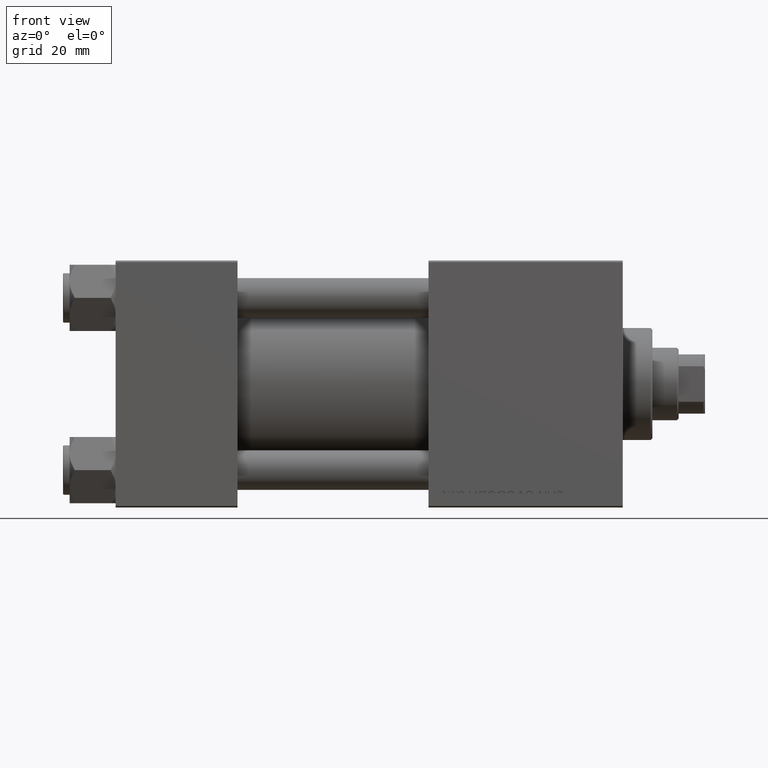
[diagram: clean part render]
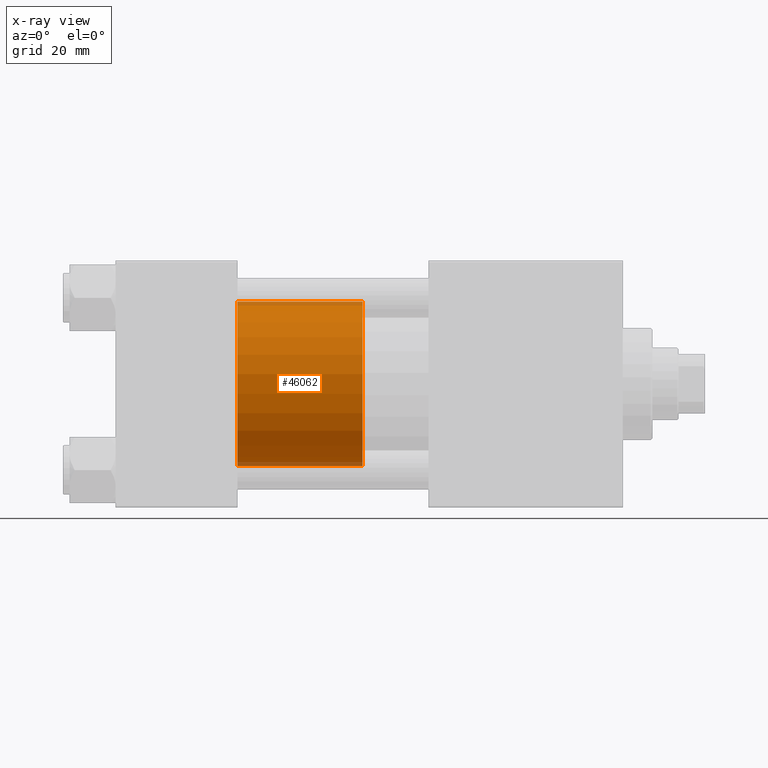
[diagram: x-ray — body ghosted, one internal face saturated and labeled with its STEP entity id]
A machine part, front view, then the same camera in x-ray: the body is ghosted and one INTERNAL B-rep face — a face not visible from any outside direction — is saturated and labeled: STEP entity #46062.
In plain terms, the highlighted cylindrical surface (partial cylindrical patch) has radius 25 mm, axis along (-1, 0, 0).
Its self-contained STEP definition (entity closure, byte-faithful):
#854 = VECTOR ( 'NONE', #43478, 1000.000000000000000 ) ;
#1059 = EDGE_LOOP ( 'NONE', ( #11451, #11830, #21192, #6367 ) ) ;
#1401 = DIRECTION ( 'NONE',  ( 0.000000000000000000, 0.000000000000000000, 1.000000000000000000 ) ) ;
#2827 = CARTESIAN_POINT ( 'NONE',  ( 25.00000000000000000, 3.061616997868383043E-15, 38.00000000000000000 ) ) ;
#4351 = DIRECTION ( 'NONE',  ( 1.000000000000000000, 0.000000000000000000, 0.000000000000000000 ) ) ;
#6367 = ORIENTED_EDGE ( 'NONE', *, *, #11482, .F. ) ;
#7653 = CARTESIAN_POINT ( 'NONE',  ( 0.000000000000000000, 0.000000000000000000, 0.000000000000000000 ) ) ;
#8158 = CARTESIAN_POINT ( 'NONE',  ( -25.00000000000000000, 0.000000000000000000, 0.000000000000000000 ) ) ;
#11332 = VERTEX_POINT ( 'NONE', #2827 ) ;
#11451 = ORIENTED_EDGE ( 'NONE', *, *, #14876, .F. ) ;
#11482 = EDGE_CURVE ( 'NONE', #44862, #12226, #15992, .T. ) ;
#11830 = ORIENTED_EDGE ( 'NONE', *, *, #36559, .T. ) ;
#12226 = VERTEX_POINT ( 'NONE', #8158 ) ;
#12567 = DIRECTION ( 'NONE',  ( 1.000000000000000000, 0.000000000000000000, 0.000000000000000000 ) ) ;
#14876 = EDGE_CURVE ( 'NONE', #11332, #44862, #42220, .T. ) ;
#15241 = CARTESIAN_POINT ( 'NONE',  ( -25.00000000000000000, 0.000000000000000000, 38.00000000000000000 ) ) ;
#15992 = LINE ( 'NONE', #15241, #40529 ) ;
#16848 = VERTEX_POINT ( 'NONE', #48972 ) ;
#18667 = CIRCLE ( 'NONE', #21095, 25.00000000000000000 ) ;
#19528 = CARTESIAN_POINT ( 'NONE',  ( -25.00000000000000000, 0.000000000000000000, 38.00000000000000000 ) ) ;
#20320 = AXIS2_PLACEMENT_3D ( 'NONE', #39001, #1401, #12567 ) ;
#21095 = AXIS2_PLACEMENT_3D ( 'NONE', #7653, #38609, #4351 ) ;
#21192 = ORIENTED_EDGE ( 'NONE', *, *, #36030, .T. ) ;
#21764 = DIRECTION ( 'NONE',  ( -1.000000000000000000, 0.000000000000000000, 0.000000000000000000 ) ) ;
#25344 = CYLINDRICAL_SURFACE ( 'NONE', #28633, 25.00000000000000000 ) ;
#28633 = AXIS2_PLACEMENT_3D ( 'NONE', #37274, #45128, #21764 ) ;
#35616 = LINE ( 'NONE', #46545, #854 ) ;
#36030 = EDGE_CURVE ( 'NONE', #16848, #12226, #18667, .T. ) ;
#36559 = EDGE_CURVE ( 'NONE', #11332, #16848, #35616, .T. ) ;
#37274 = CARTESIAN_POINT ( 'NONE',  ( 0.000000000000000000, 0.000000000000000000, 38.00000000000000000 ) ) ;
#38609 = DIRECTION ( 'NONE',  ( 0.000000000000000000, 0.000000000000000000, 1.000000000000000000 ) ) ;
#39001 = CARTESIAN_POINT ( 'NONE',  ( 0.000000000000000000, 0.000000000000000000, 38.00000000000000000 ) ) ;
#40529 = VECTOR ( 'NONE', #46222, 1000.000000000000000 ) ;
#42220 = CIRCLE ( 'NONE', #20320, 25.00000000000000000 ) ;
#43478 = DIRECTION ( 'NONE',  ( -0.000000000000000000, -0.000000000000000000, -1.000000000000000000 ) ) ;
#44862 = VERTEX_POINT ( 'NONE', #19528 ) ;
#45128 = DIRECTION ( 'NONE',  ( -0.000000000000000000, -0.000000000000000000, -1.000000000000000000 ) ) ;
#45639 = FACE_OUTER_BOUND ( 'NONE', #1059, .T. ) ;
#46062 = ADVANCED_FACE ( 'NONE', ( #45639 ), #25344, .T. ) ;
#46222 = DIRECTION ( 'NONE',  ( -0.000000000000000000, -0.000000000000000000, -1.000000000000000000 ) ) ;
#46545 = CARTESIAN_POINT ( 'NONE',  ( 25.00000000000000000, 3.061616997868383043E-15, 38.00000000000000000 ) ) ;
#48972 = CARTESIAN_POINT ( 'NONE',  ( 25.00000000000000000, 3.061616997868383043E-15, 0.000000000000000000 ) ) ;